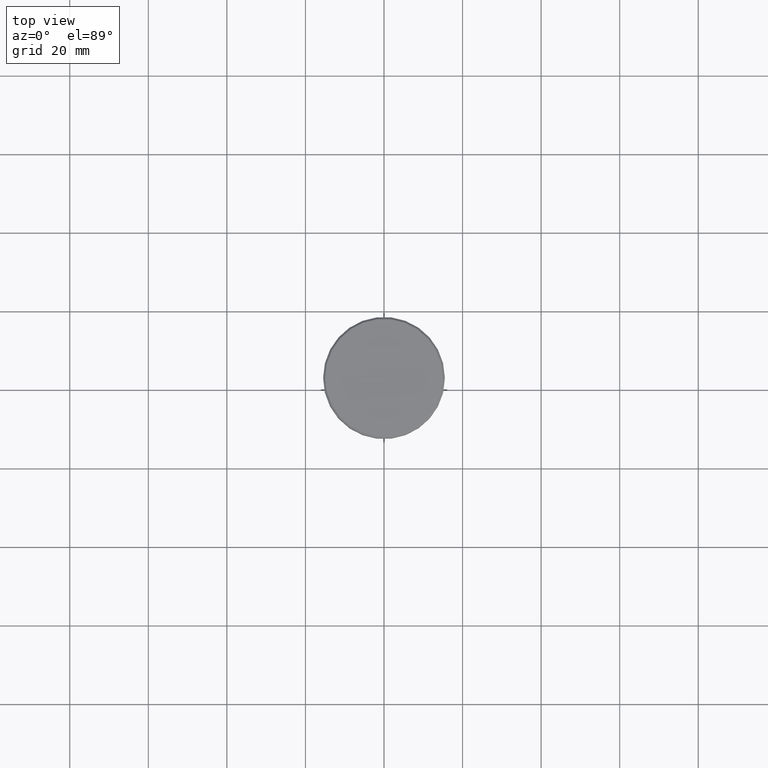
[diagram: clean part render]
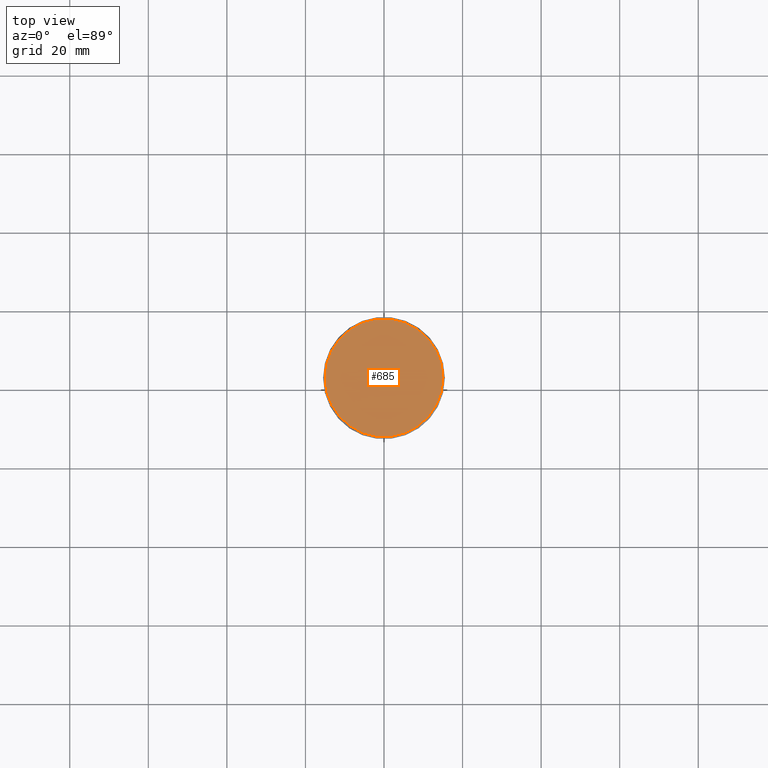
[diagram: same view with one face highlighted and labeled with its STEP entity id]
A machine part, top view. The second image highlights one B-rep face of the part: STEP entity #685.
In plain terms, the highlighted planar face has unit normal (0, -0, 1).
Its self-contained STEP definition (entity closure, byte-faithful):
#98 = VERTEX_POINT ( 'NONE', #324 ) ;
#209 = AXIS2_PLACEMENT_3D ( 'NONE', #589, #595, #958 ) ;
#288 = ORIENTED_EDGE ( 'NONE', *, *, #308, .T. ) ;
#308 = EDGE_CURVE ( 'NONE', #933, #98, #1005, .T. ) ;
#324 = CARTESIAN_POINT ( 'NONE',  ( -14.99999999999995737, 0.000000000000000000, 0.000000000000000000 ) ) ;
#368 = ORIENTED_EDGE ( 'NONE', *, *, #614, .T. ) ;
#415 = DIRECTION ( 'NONE',  ( 1.000000000000000000, 0.000000000000000000, 0.000000000000000000 ) ) ;
#435 = EDGE_LOOP ( 'NONE', ( #368, #288 ) ) ;
#472 = CIRCLE ( 'NONE', #209, 14.99999999999995737 ) ;
#489 = AXIS2_PLACEMENT_3D ( 'NONE', #999, #773, #863 ) ;
#589 = CARTESIAN_POINT ( 'NONE',  ( 0.000000000000000000, 0.000000000000000000, 0.000000000000000000 ) ) ;
#595 = DIRECTION ( 'NONE',  ( -0.000000000000000000, -0.000000000000000000, 1.000000000000000000 ) ) ;
#614 = EDGE_CURVE ( 'NONE', #98, #933, #472, .T. ) ;
#685 = ADVANCED_FACE ( 'NONE', ( #811 ), #776, .T. ) ;
#747 = AXIS2_PLACEMENT_3D ( 'NONE', #1134, #1049, #415 ) ;
#770 = CARTESIAN_POINT ( 'NONE',  ( 14.99999999999995737, 1.867586368699711009E-15, 0.000000000000000000 ) ) ;
#773 = DIRECTION ( 'NONE',  ( -0.000000000000000000, -0.000000000000000000, 1.000000000000000000 ) ) ;
#776 = PLANE ( 'NONE',  #747 ) ;
#811 = FACE_OUTER_BOUND ( 'NONE', #435, .T. ) ;
#863 = DIRECTION ( 'NONE',  ( 1.000000000000000000, 0.000000000000000000, 0.000000000000000000 ) ) ;
#933 = VERTEX_POINT ( 'NONE', #770 ) ;
#958 = DIRECTION ( 'NONE',  ( 1.000000000000000000, 0.000000000000000000, 0.000000000000000000 ) ) ;
#999 = CARTESIAN_POINT ( 'NONE',  ( 0.000000000000000000, 0.000000000000000000, 0.000000000000000000 ) ) ;
#1005 = CIRCLE ( 'NONE', #489, 14.99999999999995737 ) ;
#1049 = DIRECTION ( 'NONE',  ( 0.000000000000000000, -0.000000000000000000, 1.000000000000000000 ) ) ;
#1134 = CARTESIAN_POINT ( 'NONE',  ( 0.000000000000000000, 0.000000000000000000, 0.000000000000000000 ) ) ;